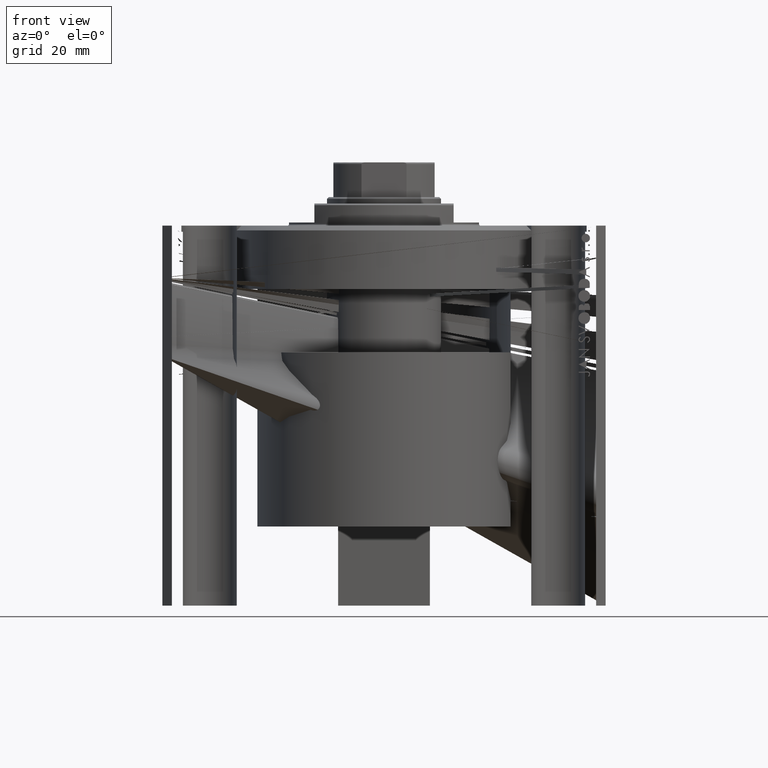
[diagram: clean part render]
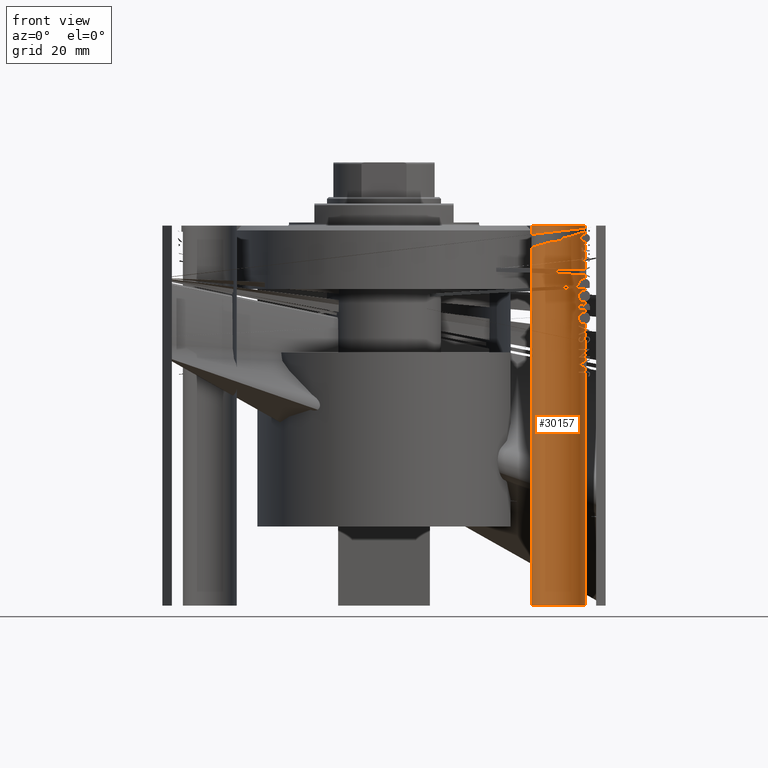
[diagram: same view with one face highlighted and labeled with its STEP entity id]
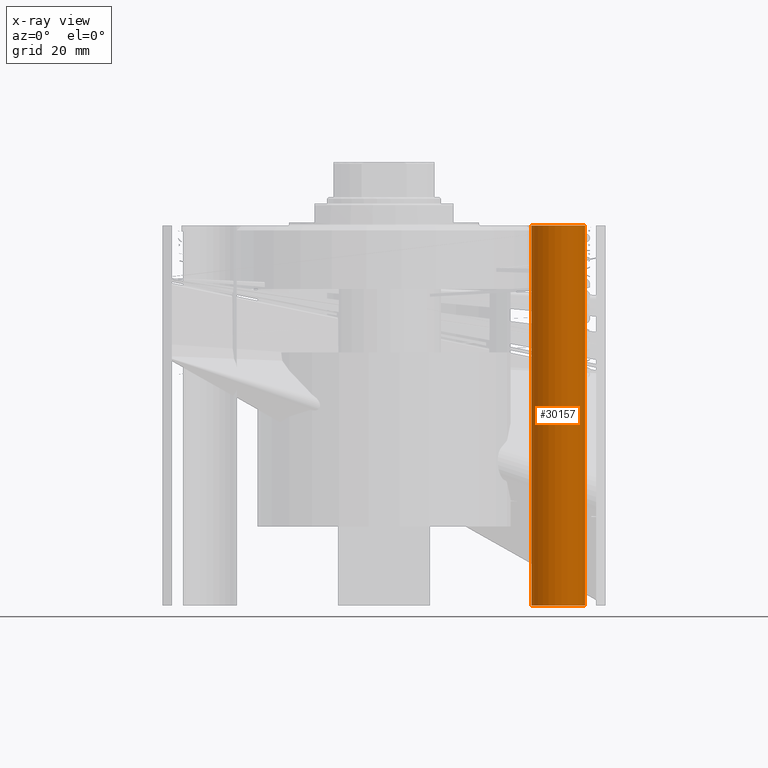
[diagram: x-ray of the same camera — body ghosted, the highlighted face saturated]
A machine part, front view. The second image highlights one B-rep face of the part: STEP entity #30157.
The next image is the same camera in x-ray: the body ghosted, the highlighted face saturated — about 0% of this face is hidden behind the body in this view.
In plain terms, the highlighted cylindrical surface (edge-blend (fillet) strip) has radius 8.5 mm, axis along (0, 0, 1).
Its self-contained STEP definition (entity closure, byte-faithful):
#163 = DIRECTION ( 'NONE',  ( -0.000000000000000000, -0.000000000000000000, -1.000000000000000000 ) ) ;
#395 = DIRECTION ( 'NONE',  ( 1.000000000000000000, 0.000000000000000000, 0.000000000000000000 ) ) ;
#1257 = ORIENTED_EDGE ( 'NONE', *, *, #39002, .F. ) ;
#1758 = ORIENTED_EDGE ( 'NONE', *, *, #29717, .T. ) ;
#3961 = AXIS2_PLACEMENT_3D ( 'NONE', #5648, #24026, #41700 ) ;
#5648 = CARTESIAN_POINT ( 'NONE',  ( 54.99999999999998579, -37.50000000000000711, 0.000000000000000000 ) ) ;
#6969 = VERTEX_POINT ( 'NONE', #41440 ) ;
#8865 = CARTESIAN_POINT ( 'NONE',  ( 46.49999999999998579, -37.50000000000000711, -120.0000000000000000 ) ) ;
#11561 = AXIS2_PLACEMENT_3D ( 'NONE', #36441, #163, #395 ) ;
#12340 = AXIS2_PLACEMENT_3D ( 'NONE', #43219, #36524, #36062 ) ;
#12482 = EDGE_CURVE ( 'NONE', #6969, #26171, #32904, .T. ) ;
#14338 = FACE_OUTER_BOUND ( 'NONE', #36874, .T. ) ;
#17978 = EDGE_CURVE ( 'NONE', #26171, #35264, #21191, .T. ) ;
#19249 = CARTESIAN_POINT ( 'NONE',  ( 46.49999999999998579, -37.50000000000000711, 0.000000000000000000 ) ) ;
#19495 = VECTOR ( 'NONE', #26794, 1000.000000000000000 ) ;
#20099 = LINE ( 'NONE', #34658, #19495 ) ;
#21191 = LINE ( 'NONE', #24302, #40329 ) ;
#23024 = CIRCLE ( 'NONE', #3961, 8.500000000000000000 ) ;
#23526 = VERTEX_POINT ( 'NONE', #25553 ) ;
#24026 = DIRECTION ( 'NONE',  ( 0.000000000000000000, 0.000000000000000000, 1.000000000000000000 ) ) ;
#24302 = CARTESIAN_POINT ( 'NONE',  ( 46.49999999999998579, -37.50000000000000711, -144.0416305603426395 ) ) ;
#25553 = CARTESIAN_POINT ( 'NONE',  ( 63.49999999999998579, -37.50000000000000711, 0.000000000000000000 ) ) ;
#26171 = VERTEX_POINT ( 'NONE', #8865 ) ;
#26794 = DIRECTION ( 'NONE',  ( -0.000000000000000000, -0.000000000000000000, 1.000000000000000000 ) ) ;
#29717 = EDGE_CURVE ( 'NONE', #35264, #23526, #23024, .T. ) ;
#30157 = ADVANCED_FACE ( 'NONE', ( #14338 ), #32713, .F. ) ;
#32713 = CYLINDRICAL_SURFACE ( 'NONE', #12340, 8.500000000000000000 ) ;
#32904 = CIRCLE ( 'NONE', #11561, 8.500000000000000000 ) ;
#34658 = CARTESIAN_POINT ( 'NONE',  ( 63.49999999999998579, -37.50000000000000711, -144.0416305603426395 ) ) ;
#35264 = VERTEX_POINT ( 'NONE', #19249 ) ;
#35702 = ORIENTED_EDGE ( 'NONE', *, *, #17978, .T. ) ;
#36062 = DIRECTION ( 'NONE',  ( 1.000000000000000000, 0.000000000000000000, 0.000000000000000000 ) ) ;
#36441 = CARTESIAN_POINT ( 'NONE',  ( 54.99999999999998579, -37.50000000000000711, -120.0000000000000000 ) ) ;
#36524 = DIRECTION ( 'NONE',  ( -0.000000000000000000, -0.000000000000000000, 1.000000000000000000 ) ) ;
#36874 = EDGE_LOOP ( 'NONE', ( #43723, #35702, #1758, #1257 ) ) ;
#39002 = EDGE_CURVE ( 'NONE', #6969, #23526, #20099, .T. ) ;
#40329 = VECTOR ( 'NONE', #46491, 1000.000000000000000 ) ;
#41440 = CARTESIAN_POINT ( 'NONE',  ( 63.49999999999998579, -37.50000000000000711, -120.0000000000000000 ) ) ;
#41700 = DIRECTION ( 'NONE',  ( 1.000000000000000000, 0.000000000000000000, 0.000000000000000000 ) ) ;
#43219 = CARTESIAN_POINT ( 'NONE',  ( 54.99999999999998579, -37.50000000000000711, -144.0416305603426395 ) ) ;
#43723 = ORIENTED_EDGE ( 'NONE', *, *, #12482, .T. ) ;
#46491 = DIRECTION ( 'NONE',  ( -0.000000000000000000, -0.000000000000000000, 1.000000000000000000 ) ) ;